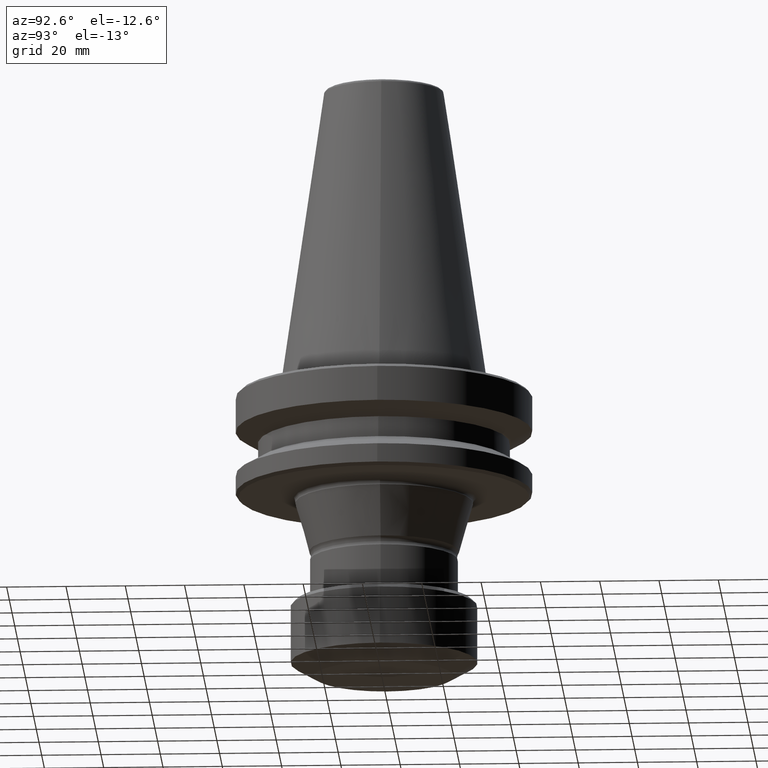
[diagram: clean part render]
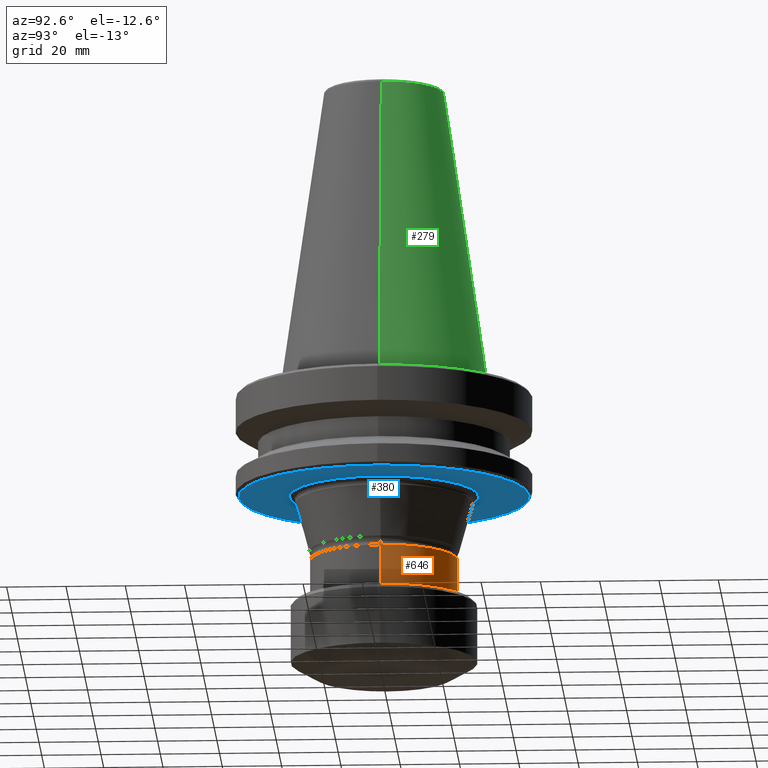
[diagram: same view with three faces highlighted in distinct colors, each labeled with its STEP entity id]
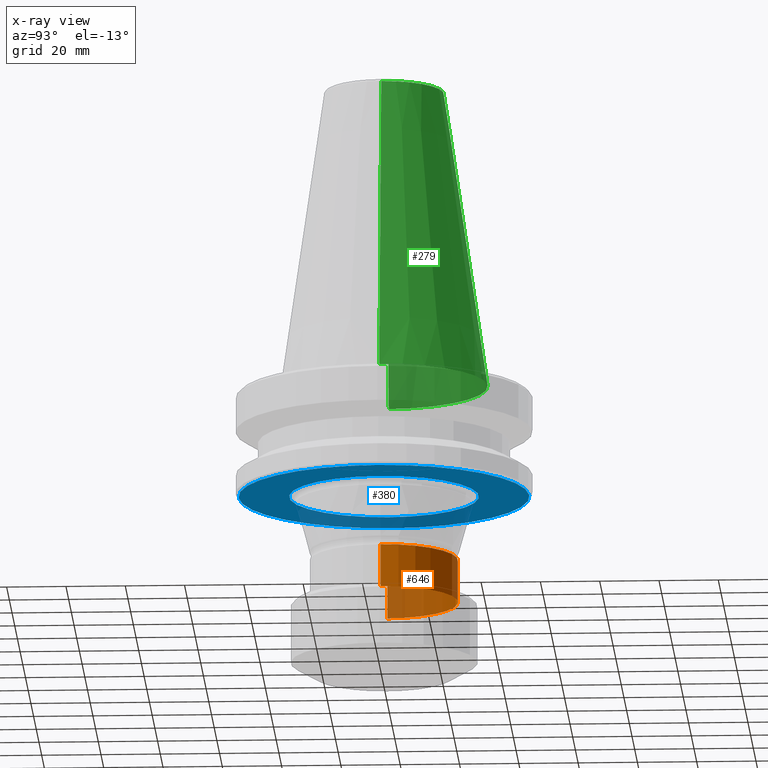
[diagram: x-ray of the same camera — body ghosted, the three highlighted faces saturated]
A machine part, auxiliary view with three faces highlighted in distinct colors.
The next image is the same camera in x-ray (body ghosted, the three faces saturated) — at least one of them is partly hidden behind the body in this view.
Their STEP definitions:

[orange] entity #646 — the highlighted cylindrical surface (partial cylindrical patch) has radius 24.95 mm, axis along (-0, -0, 1).
#9 = VERTEX_POINT ( 'NONE', #703 ) ;
#47 = EDGE_CURVE ( 'NONE', #9, #1236, #365, .T. ) ;
#67 = FACE_OUTER_BOUND ( 'NONE', #1201, .T. ) ;
#74 = VECTOR ( 'NONE', #1317, 1000.000000000000000 ) ;
#84 = DIRECTION ( 'NONE',  ( -1.000000000000000000, 0.0000000000000000000, 0.0000000000000000000 ) ) ;
#85 = VECTOR ( 'NONE', #131, 1000.000000000000000 ) ;
#97 = DIRECTION ( 'NONE',  ( 0.0000000000000000000, 0.0000000000000000000, -1.000000000000000000 ) ) ;
#99 = CARTESIAN_POINT ( 'NONE',  ( -24.94999999999980400, 3.055493763872622300E-015, 117.7912044257657300 ) ) ;
#114 = CARTESIAN_POINT ( 'NONE',  ( 0.0000000000000000000, 0.0000000000000000000, 117.7912044257657300 ) ) ;
#128 = CARTESIAN_POINT ( 'NONE',  ( 24.94999999999980400, 0.0000000000000000000, 117.7912044257657300 ) ) ;
#131 = DIRECTION ( 'NONE',  ( -0.0000000000000000000, -0.0000000000000000000, 1.000000000000000000 ) ) ;
#320 = AXIS2_PLACEMENT_3D ( 'NONE', #114, #348, #635 ) ;
#348 = DIRECTION ( 'NONE',  ( -0.0000000000000000000, -0.0000000000000000000, 1.000000000000000000 ) ) ;
#349 = LINE ( 'NONE', #128, #74 ) ;
#365 = LINE ( 'NONE', #99, #85 ) ;
#433 = CARTESIAN_POINT ( 'NONE',  ( 24.94999999999980400, 0.0000000000000000000, -60.00000000000128600 ) ) ;
#451 = AXIS2_PLACEMENT_3D ( 'NONE', #888, #851, #1228 ) ;
#462 = VERTEX_POINT ( 'NONE', #433 ) ;
#496 = CARTESIAN_POINT ( 'NONE',  ( -24.94999999999980400, 3.055493763872622300E-015, -60.00000000000128600 ) ) ;
#635 = DIRECTION ( 'NONE',  ( 1.000000000000000000, 0.0000000000000000000, 0.0000000000000000000 ) ) ;
#646 = ADVANCED_FACE ( 'NONE', ( #67 ), #1086, .T. ) ;
#650 = CIRCLE ( 'NONE', #451, 24.94999999999980400 ) ;
#694 = ORIENTED_EDGE ( 'NONE', *, *, #1020, .F. ) ;
#703 = CARTESIAN_POINT ( 'NONE',  ( -24.94999999999980400, 3.055493763872622300E-015, -74.50446013757861900 ) ) ;
#723 = CARTESIAN_POINT ( 'NONE',  ( 24.94999999999980400, 0.0000000000000000000, -74.50446013757861900 ) ) ;
#851 = DIRECTION ( 'NONE',  ( -0.0000000000000000000, -0.0000000000000000000, 1.000000000000000000 ) ) ;
#888 = CARTESIAN_POINT ( 'NONE',  ( 0.0000000000000000000, 0.0000000000000000000, -60.00000000000128600 ) ) ;
#890 = CIRCLE ( 'NONE', #986, 24.94999999999980400 ) ;
#960 = ORIENTED_EDGE ( 'NONE', *, *, #1144, .F. ) ;
#986 = AXIS2_PLACEMENT_3D ( 'NONE', #1022, #97, #84 ) ;
#988 = ORIENTED_EDGE ( 'NONE', *, *, #47, .T. ) ;
#1020 = EDGE_CURVE ( 'NONE', #462, #1236, #650, .T. ) ;
#1022 = CARTESIAN_POINT ( 'NONE',  ( 0.0000000000000000000, 0.0000000000000000000, -74.50446013757861900 ) ) ;
#1043 = ORIENTED_EDGE ( 'NONE', *, *, #1294, .F. ) ;
#1086 = CYLINDRICAL_SURFACE ( 'NONE', #320, 24.94999999999980400 ) ;
#1144 = EDGE_CURVE ( 'NONE', #1221, #462, #349, .T. ) ;
#1201 = EDGE_LOOP ( 'NONE', ( #1043, #988, #694, #960 ) ) ;
#1221 = VERTEX_POINT ( 'NONE', #723 ) ;
#1228 = DIRECTION ( 'NONE',  ( 1.000000000000000000, 0.0000000000000000000, 0.0000000000000000000 ) ) ;
#1236 = VERTEX_POINT ( 'NONE', #496 ) ;
#1294 = EDGE_CURVE ( 'NONE', #9, #1221, #890, .T. ) ;
#1317 = DIRECTION ( 'NONE',  ( -0.0000000000000000000, -0.0000000000000000000, 1.000000000000000000 ) ) ;

[blue] entity #380 — the highlighted planar face has unit normal (0, -0, 1).
#26 = DIRECTION ( 'NONE',  ( -0.0000000000000000000, -0.0000000000000000000, 1.000000000000000000 ) ) ;
#124 = AXIS2_PLACEMENT_3D ( 'NONE', #168, #26, #941 ) ;
#168 = CARTESIAN_POINT ( 'NONE',  ( 0.0000000000000000000, 0.0000000000000000000, -38.00000000000193300 ) ) ;
#182 = CIRCLE ( 'NONE', #1168, 31.99999999999969400 ) ;
#213 = DIRECTION ( 'NONE',  ( -0.0000000000000000000, -0.0000000000000000000, 1.000000000000000000 ) ) ;
#239 = CARTESIAN_POINT ( 'NONE',  ( 0.0000000000000000000, 0.0000000000000000000, -38.00000000000193300 ) ) ;
#250 = DIRECTION ( 'NONE',  ( -0.0000000000000000000, -0.0000000000000000000, 1.000000000000000000 ) ) ;
#258 = EDGE_LOOP ( 'NONE', ( #922, #379 ) ) ;
#268 = ORIENTED_EDGE ( 'NONE', *, *, #706, .T. ) ;
#289 = FACE_BOUND ( 'NONE', #726, .T. ) ;
#322 = FACE_OUTER_BOUND ( 'NONE', #258, .T. ) ;
#352 = CARTESIAN_POINT ( 'NONE',  ( -48.99999999999982200, 6.062001655779383500E-015, -38.00000000000193300 ) ) ;
#379 = ORIENTED_EDGE ( 'NONE', *, *, #688, .F. ) ;
#380 = ADVANCED_FACE ( 'NONE', ( #322, #289 ), #580, .F. ) ;
#410 = CARTESIAN_POINT ( 'NONE',  ( 0.0000000000000000000, 0.0000000000000000000, -38.00000000000193300 ) ) ;
#580 = PLANE ( 'NONE',  #637 ) ;
#587 = DIRECTION ( 'NONE',  ( 1.000000000000000000, 0.0000000000000000000, 0.0000000000000000000 ) ) ;
#602 = DIRECTION ( 'NONE',  ( -0.0000000000000000000, -0.0000000000000000000, 1.000000000000000000 ) ) ;
#637 = AXIS2_PLACEMENT_3D ( 'NONE', #1041, #1193, #949 ) ;
#642 = VERTEX_POINT ( 'NONE', #842 ) ;
#643 = CIRCLE ( 'NONE', #893, 48.99999999999982200 ) ;
#669 = VERTEX_POINT ( 'NONE', #1226 ) ;
#688 = EDGE_CURVE ( 'NONE', #720, #669, #766, .T. ) ;
#706 = EDGE_CURVE ( 'NONE', #957, #642, #1052, .T. ) ;
#720 = VERTEX_POINT ( 'NONE', #352 ) ;
#726 = EDGE_LOOP ( 'NONE', ( #268, #813 ) ) ;
#766 = CIRCLE ( 'NONE', #124, 48.99999999999982200 ) ;
#813 = ORIENTED_EDGE ( 'NONE', *, *, #1272, .T. ) ;
#842 = CARTESIAN_POINT ( 'NONE',  ( -31.99999999999969400, 3.918869757271494000E-015, -38.00000000000193300 ) ) ;
#846 = CARTESIAN_POINT ( 'NONE',  ( 0.0000000000000000000, 0.0000000000000000000, -38.00000000000193300 ) ) ;
#893 = AXIS2_PLACEMENT_3D ( 'NONE', #239, #213, #587 ) ;
#922 = ORIENTED_EDGE ( 'NONE', *, *, #1281, .F. ) ;
#941 = DIRECTION ( 'NONE',  ( 1.000000000000000000, 0.0000000000000000000, 0.0000000000000000000 ) ) ;
#944 = AXIS2_PLACEMENT_3D ( 'NONE', #846, #250, #1033 ) ;
#949 = DIRECTION ( 'NONE',  ( 1.000000000000000000, 0.0000000000000000000, 0.0000000000000000000 ) ) ;
#957 = VERTEX_POINT ( 'NONE', #964 ) ;
#964 = CARTESIAN_POINT ( 'NONE',  ( 31.99999999999969400, 0.0000000000000000000, -38.00000000000193300 ) ) ;
#1033 = DIRECTION ( 'NONE',  ( 1.000000000000000000, 0.0000000000000000000, 0.0000000000000000000 ) ) ;
#1041 = CARTESIAN_POINT ( 'NONE',  ( 0.0000000000000000000, 48.99999999999982200, -38.00000000000191800 ) ) ;
#1052 = CIRCLE ( 'NONE', #944, 31.99999999999969400 ) ;
#1168 = AXIS2_PLACEMENT_3D ( 'NONE', #410, #602, #1328 ) ;
#1193 = DIRECTION ( 'NONE',  ( 0.0000000000000000000, -0.0000000000000000000, 1.000000000000000000 ) ) ;
#1226 = CARTESIAN_POINT ( 'NONE',  ( 48.99999999999982200, 0.0000000000000000000, -38.00000000000193300 ) ) ;
#1272 = EDGE_CURVE ( 'NONE', #642, #957, #182, .T. ) ;
#1281 = EDGE_CURVE ( 'NONE', #669, #720, #643, .T. ) ;
#1328 = DIRECTION ( 'NONE',  ( 1.000000000000000000, 0.0000000000000000000, 0.0000000000000000000 ) ) ;

[green] entity #279 — the highlighted conical surface has half-angle 8.297 deg.
#36 = ORIENTED_EDGE ( 'NONE', *, *, #524, .F. ) ;
#77 = VECTOR ( 'NONE', #620, 1000.000000000000000 ) ;
#95 = VERTEX_POINT ( 'NONE', #872 ) ;
#101 = ORIENTED_EDGE ( 'NONE', *, *, #919, .T. ) ;
#112 = VERTEX_POINT ( 'NONE', #1335 ) ;
#123 = DIRECTION ( 'NONE',  ( 0.1443082234293907000, 1.767266039134444200E-017, -0.9895327870518758600 ) ) ;
#165 = ORIENTED_EDGE ( 'NONE', *, *, #715, .T. ) ;
#167 = AXIS2_PLACEMENT_3D ( 'NONE', #834, #1047, #714 ) ;
#196 = DIRECTION ( 'NONE',  ( 1.000000000000000000, 0.0000000000000000000, 0.0000000000000000000 ) ) ;
#279 = ADVANCED_FACE ( 'NONE', ( #1189 ), #610, .T. ) ;
#342 = AXIS2_PLACEMENT_3D ( 'NONE', #936, #613, #196 ) ;
#353 = CARTESIAN_POINT ( 'NONE',  ( 34.92499999999942900, 4.277078946022061500E-015, 0.0000000000000000000 ) ) ;
#397 = VERTEX_POINT ( 'NONE', #902 ) ;
#509 = CARTESIAN_POINT ( 'NONE',  ( 0.0000000000000000000, 0.0000000000000000000, 100.9443082234284200 ) ) ;
#524 = EDGE_CURVE ( 'NONE', #112, #95, #1207, .T. ) ;
#542 = DIRECTION ( 'NONE',  ( -0.0000000000000000000, -0.0000000000000000000, 1.000000000000000000 ) ) ;
#610 = CONICAL_SURFACE ( 'NONE', #167, 34.92499999999942900, 0.1448138426689055100 ) ;
#611 = LINE ( 'NONE', #997, #77 ) ;
#613 = DIRECTION ( 'NONE',  ( -0.0000000000000000000, -0.0000000000000000000, 1.000000000000000000 ) ) ;
#620 = DIRECTION ( 'NONE',  ( -0.1443082234293907000, 0.0000000000000000000, -0.9895327870518758600 ) ) ;
#692 = CARTESIAN_POINT ( 'NONE',  ( -34.92499999999942900, 4.277078946022061500E-015, 1.084202172485504400E-016 ) ) ;
#711 = CIRCLE ( 'NONE', #342, 34.92499999999942900 ) ;
#714 = DIRECTION ( 'NONE',  ( -1.000000000000000000, 0.0000000000000000000, 0.0000000000000000000 ) ) ;
#715 = EDGE_CURVE ( 'NONE', #112, #397, #1114, .T. ) ;
#745 = EDGE_LOOP ( 'NONE', ( #36, #165, #101, #904 ) ) ;
#773 = EDGE_CURVE ( 'NONE', #95, #1325, #611, .T. ) ;
#834 = CARTESIAN_POINT ( 'NONE',  ( 0.0000000000000000000, 0.0000000000000000000, 0.0000000000000000000 ) ) ;
#872 = CARTESIAN_POINT ( 'NONE',  ( -20.20381645192148700, 0.0000000000000000000, 100.9443082234284200 ) ) ;
#902 = CARTESIAN_POINT ( 'NONE',  ( 34.92499999999942900, 0.0000000000000000000, 1.084202172485504400E-016 ) ) ;
#904 = ORIENTED_EDGE ( 'NONE', *, *, #773, .F. ) ;
#919 = EDGE_CURVE ( 'NONE', #397, #1325, #711, .T. ) ;
#936 = CARTESIAN_POINT ( 'NONE',  ( 0.0000000000000000000, 0.0000000000000000000, 0.0000000000000000000 ) ) ;
#981 = AXIS2_PLACEMENT_3D ( 'NONE', #509, #542, #1332 ) ;
#997 = CARTESIAN_POINT ( 'NONE',  ( -34.92499999999942900, 0.0000000000000000000, 0.0000000000000000000 ) ) ;
#1021 = VECTOR ( 'NONE', #123, 1000.000000000000000 ) ;
#1047 = DIRECTION ( 'NONE',  ( 0.0000000000000000000, 0.0000000000000000000, -1.000000000000000000 ) ) ;
#1114 = LINE ( 'NONE', #353, #1021 ) ;
#1189 = FACE_OUTER_BOUND ( 'NONE', #745, .T. ) ;
#1207 = CIRCLE ( 'NONE', #981, 20.20381645192148700 ) ;
#1325 = VERTEX_POINT ( 'NONE', #692 ) ;
#1332 = DIRECTION ( 'NONE',  ( 1.000000000000000000, 0.0000000000000000000, 0.0000000000000000000 ) ) ;
#1335 = CARTESIAN_POINT ( 'NONE',  ( 20.20381645192148700, 3.375666430431344500E-015, 100.9443082234284200 ) ) ;